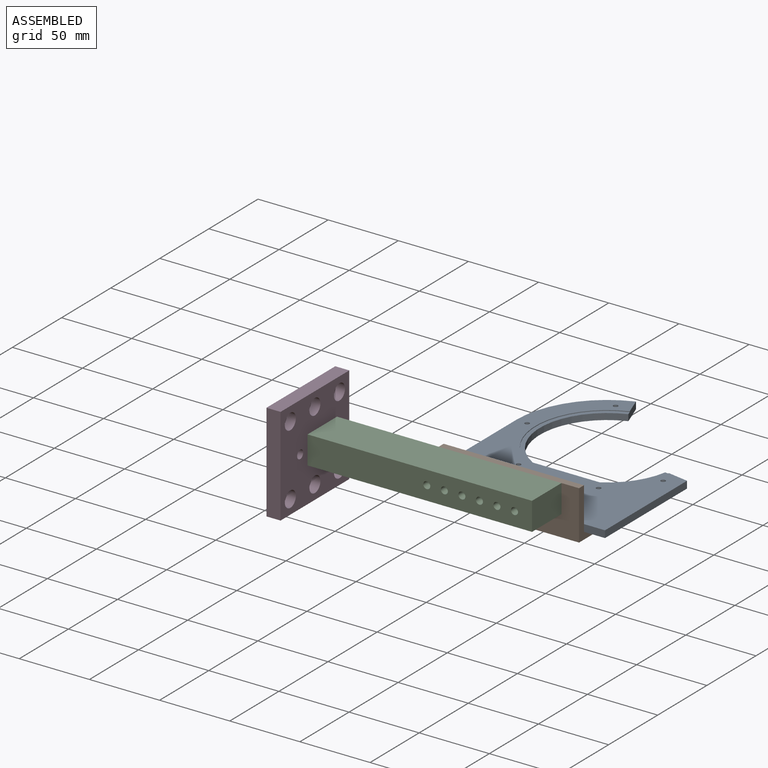
[diagram: assembled view]
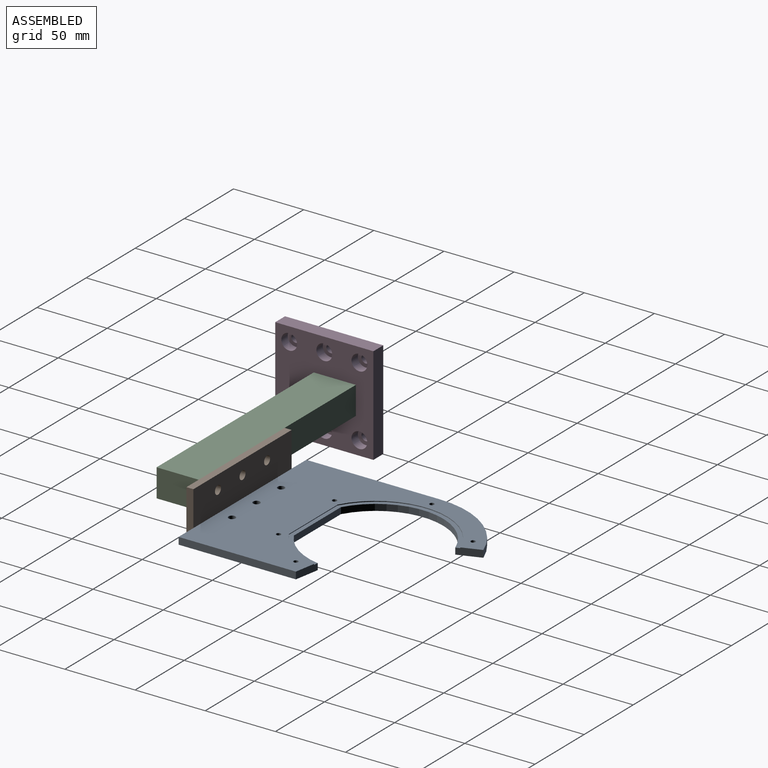
[diagram: assembled view, second angle]
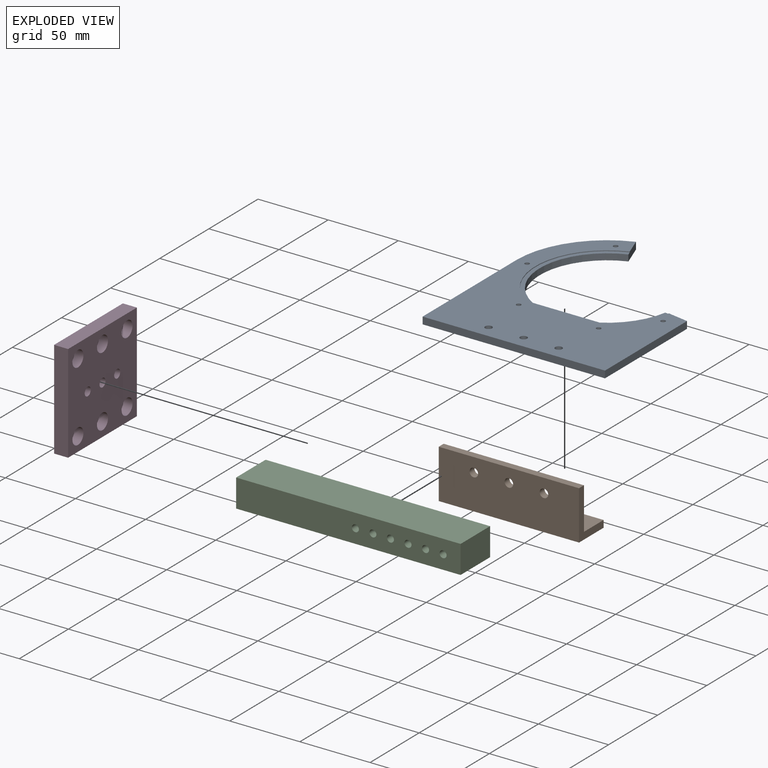
[diagram: exploded view]
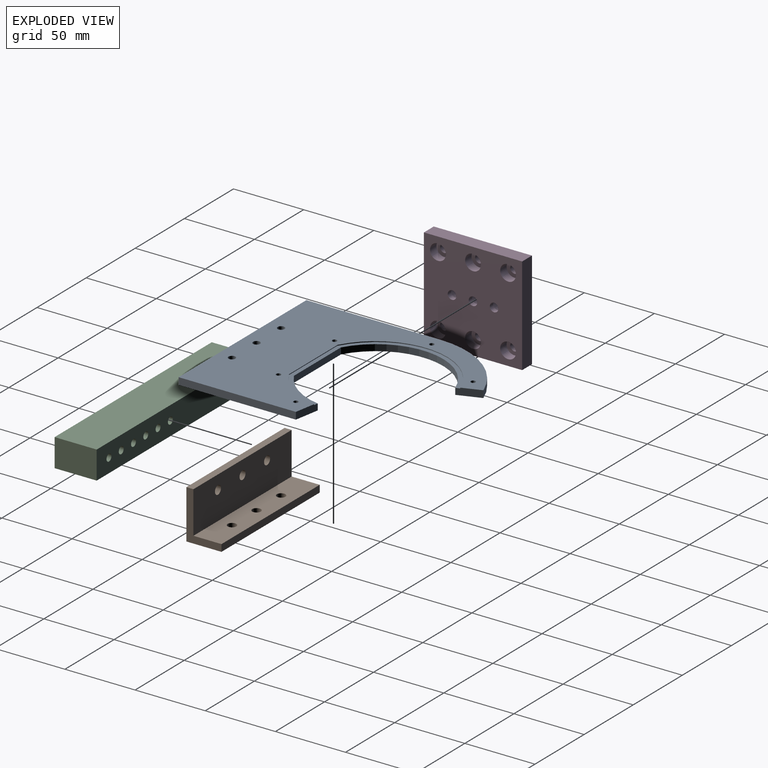
[diagram: exploded view, second angle]
ASSEMBLY  parts=4 mates=3
PART A: 23 faces, bbox 130x156.1x5 mm
  f0: plane 156.08x130mm, normal (0,0,-1), area 9226.5mm2, adj f3,f4,f7,f8,f9,f10,f12,f13
  f1: cylinder r=48mm len=33.27mm, axis (0,0,1), area 188.8mm2, adj f5,f6,f11,f13
  f2: cylinder r=48mm len=86.71mm, axis (0,0,1), area 490.4mm2, adj f5,f6,f11,f14
  f3: cylinder r=65mm len=61.08mm, axis (0,0,1), area 397.1mm2, adj f0,f5,f9,f14
  f4: plane 83.54x5mm, normal (1,0,0), area 417.7mm2, adj f0,f5,f10,f13
  f5: plane 156.08x130mm, normal (0,0,1), area 9841.9mm2, adj f1,f2,f3,f4,f9,f10,f11,f13
  f6: plane 101.23x92.52mm, normal (0,0,-1), area 615.4mm2, adj f1,f2,f7,f8,f11,f12,f13,f14
  f7: cylinder r=51mm len=35.74mm, axis (0,0,-1), area 22.7mm2, adj f0,f6,f12,f13
  f8: cylinder r=51mm len=92.52mm, axis (0,0,-1), area 58.3mm2, adj f0,f6,f12,f14
  f9: plane 95x5mm, normal (-1,0,0), area 475mm2, adj f0,f3,f5,f10
  f10: plane 130x5mm, normal (0,1,0), area 650mm2, adj f0,f4,f5,f9
  f11: plane 47.89x4.5mm, normal (0,-1,0), area 215.5mm2, adj f1,f2,f5,f6
  f12: plane 49.47x0.5mm, normal (0,-1,0), area 24.7mm2, adj f0,f6,f7,f8
  f13: plane 17.73x5mm, normal (0.17,-0.98,0), area 88.5mm2, adj f0,f1,f4,f5,f6,f7
  f14: plane 15.97x5.81mm, normal (0.94,-0.34,0), area 83.5mm2, adj f0,f2,f3,f5,f6,f8
  f15: cylinder r=2.46mm len=5mm, axis (0,0,-1), area 77.2mm2, adj f0,f5
  f16: cylinder r=2.46mm len=5mm, axis (0,0,-1), area 77.2mm2, adj f0,f5
  f17: cylinder r=2.46mm len=5mm, axis (0,0,-1), area 77.2mm2, adj f0,f5
  f18: cylinder r=1.62mm len=5mm, axis (0,0,-1), area 50.9mm2, adj f0,f5
  f19: cylinder r=1.62mm len=5mm, axis (0,0,-1), area 50.9mm2, adj f0,f5
  f20: cylinder r=1.62mm len=5mm, axis (0,0,-1), area 50.9mm2, adj f0,f5
  f21: cylinder r=1.62mm len=5mm, axis (0,0,-1), area 50.9mm2, adj f0,f5
  f22: cylinder r=1.62mm len=5mm, axis (0,0,-1), area 50.9mm2, adj f0,f5
PART B: 14 faces, bbox 100x25x35 mm
  f0: plane 35x25mm, normal (-1,0,0), area 275mm2, adj f1,f3,f4,f5,f6,f7
  f1: plane 100x25mm, normal (0,0,-1), area 2412.3mm2, adj f0,f2,f5,f7,f9,f10,f11
  f2: plane 35x25mm, normal (1,0,0), area 275mm2, adj f1,f3,f4,f5,f6,f7
  f3: plane 100x5mm, normal (0,0,1), area 500mm2, adj f0,f2,f4,f5
  f4: plane 100x30mm, normal (0,-1,0), area 2912.3mm2, adj f0,f2,f3,f6,f8,f12,f13
  f5: plane 100x35mm, normal (0,1,0), area 3412.3mm2, adj f0,f1,f2,f3,f8,f12,f13
  f6: plane 100x20mm, normal (0,0,1), area 1912.3mm2, adj f0,f2,f4,f7,f9,f10,f11
  f7: plane 100x5mm, normal (0,-1,0), area 500mm2, adj f0,f1,f2,f6
  f8: cylinder r=3.05mm len=6.1mm, axis (0,-1,0), area 95.8mm2, adj f4,f5
  f9: cylinder r=3.05mm len=6.1mm, axis (0,0,-1), area 95.8mm2, adj f1,f6
  f10: cylinder r=3.05mm len=6.1mm, axis (0,0,-1), area 95.8mm2, adj f1,f6
  f11: cylinder r=3.05mm len=6.1mm, axis (0,0,-1), area 95.8mm2, adj f1,f6
  f12: cylinder r=3.05mm len=6.1mm, axis (0,1,0), area 95.8mm2, adj f4,f5
  f13: cylinder r=3.05mm len=6.1mm, axis (0,1,0), area 95.8mm2, adj f4,f5
PART C: 16 faces, bbox 160x20x30 mm
  f0: plane 30x20mm, normal (1,0,0), area 600mm2, adj f1,f3,f4,f5
  f1: plane 160x20mm, normal (0,0,1), area 3082.2mm2, adj f0,f2,f4,f5,f10,f11,f12,f13
  f2: plane 30x20mm, normal (-1,0,0), area 560.7mm2, adj f1,f3,f4,f5,f7,f9
  f3: plane 160x20mm, normal (0,0,-1), area 3082.2mm2, adj f0,f2,f4,f5,f10,f11,f12,f13
  f4: plane 160x30mm, normal (0,1,0), area 4800mm2, adj f0,f1,f2,f3
  f5: plane 160x30mm, normal (0,-1,0), area 4800mm2, adj f0,f1,f2,f3
  f6: cone r=0mm half-angle=59deg, axis (-1,0,0), area 22.9mm2, adj f7
  f7: cylinder r=2.5mm len=18mm, axis (-1,0,0), area 282.7mm2, adj f2,f6
  f8: cone r=0mm half-angle=59deg, axis (-1,0,0), area 22.9mm2, adj f9
  f9: cylinder r=2.5mm len=18mm, axis (-1,0,0), area 282.7mm2, adj f2,f8
  f10: cylinder r=2.5mm len=30mm, axis (0,0,1), area 471.2mm2, adj f1,f3
  f11: cylinder r=2.5mm len=30mm, axis (0,0,1), area 471.2mm2, adj f1,f3
  f12: cylinder r=2.5mm len=30mm, axis (0,0,1), area 471.2mm2, adj f1,f3
  f13: cylinder r=2.5mm len=30mm, axis (0,0,1), area 471.2mm2, adj f1,f3
  f14: cylinder r=2.5mm len=30mm, axis (0,0,1), area 471.2mm2, adj f1,f3
  f15: cylinder r=2.5mm len=30mm, axis (0,0,1), area 471.2mm2, adj f1,f3
PART D: 33 faces, bbox 70x10x70 mm
  f0: plane 70x10mm, normal (1,0,0), area 700mm2, adj f1,f3,f4,f5
  f1: plane 70x10mm, normal (0,0,1), area 700mm2, adj f0,f2,f4,f5
  f2: plane 70x10mm, normal (-1,0,0), area 700mm2, adj f1,f3,f4,f5
  f3: plane 70x10mm, normal (0,0,-1), area 700mm2, adj f0,f2,f4,f5
  f4: plane 70x70mm, normal (0,1,0), area 4426.4mm2, adj f0,f1,f2,f3,f6,f9,f12,f15
  f5: plane 70x70mm, normal (0,-1,0), area 4215.9mm2, adj f0,f1,f2,f3,f8,f11,f14,f17
  f6: cylinder r=3.05mm len=6.1mm, axis (0,-1,0), area 67.1mm2, adj f4,f7
  f7: plane 11.25x11.25mm, normal (0,-1,0), area 70.2mm2, adj f6,f8
  f8: cylinder r=5.62mm len=11.25mm, axis (0,-1,0), area 229.7mm2, adj f5,f7
  f9: cylinder r=3.05mm len=6.1mm, axis (0,-1,0), area 67.1mm2, adj f4,f10
  f10: plane 11.25x11.25mm, normal (0,-1,0), area 70.2mm2, adj f9,f11
  f11: cylinder r=5.62mm len=11.25mm, axis (0,-1,0), area 229.7mm2, adj f5,f10
  f12: cylinder r=3.05mm len=6.1mm, axis (0,-1,0), area 67.1mm2, adj f4,f13
  f13: plane 11.25x11.25mm, normal (0,-1,0), area 70.2mm2, adj f12,f14
  f14: cylinder r=5.62mm len=11.25mm, axis (0,-1,0), area 229.7mm2, adj f5,f13
  f15: cylinder r=3.05mm len=6.1mm, axis (0,-1,0), area 67.1mm2, adj f4,f16
  f16: plane 11.25x11.25mm, normal (0,-1,0), area 70.2mm2, adj f15,f17
  f17: cylinder r=5.62mm len=11.25mm, axis (0,-1,0), area 229.7mm2, adj f5,f16
  f18: cylinder r=3.05mm len=6.1mm, axis (0,-1,0), area 67.1mm2, adj f4,f19
  f19: plane 11.25x11.25mm, normal (0,-1,0), area 70.2mm2, adj f18,f20
  f20: cylinder r=5.62mm len=11.25mm, axis (0,-1,0), area 229.7mm2, adj f5,f19
  f21: cylinder r=3.05mm len=6.1mm, axis (0,-1,0), area 67.1mm2, adj f4,f22
  f22: plane 11.25x11.25mm, normal (0,-1,0), area 70.2mm2, adj f21,f23
  f23: cylinder r=5.62mm len=11.25mm, axis (0,-1,0), area 229.7mm2, adj f5,f22
  f24: cylinder r=3.05mm len=6.1mm, axis (0,1,0), area 67.1mm2, adj f5,f25
  f25: plane 11.25x11.25mm, normal (0,1,0), area 70.2mm2, adj f24,f26
  f26: cylinder r=5.62mm len=11.25mm, axis (0,1,0), area 229.7mm2, adj f4,f25
  f27: cylinder r=3.05mm len=6.1mm, axis (0,1,0), area 67.1mm2, adj f5,f28
  f28: plane 11.25x11.25mm, normal (0,1,0), area 70.2mm2, adj f27,f29
  f29: cylinder r=5.62mm len=11.25mm, axis (0,1,0), area 229.7mm2, adj f4,f28
  f30: cylinder r=3.05mm len=6.1mm, axis (0,1,0), area 67.1mm2, adj f5,f31
  f31: plane 11.25x11.25mm, normal (0,1,0), area 70.2mm2, adj f30,f32
  f32: cylinder r=5.62mm len=11.25mm, axis (0,1,0), area 229.7mm2, adj f4,f31
PLACE A rot(axis=(1,0,0),180deg) t=(174.38,1.82,-124.1)mm
PLACE B rot(axis=(0,0,1),180deg) t=(261.34,-67.58,-148.2)mm
PLACE C rot(axis=(-1,0,0),90deg) t=(158.72,-82.58,-94.1)mm
PLACE D rot(axis=(0.58,-0.58,0.58),120deg) t=(78.72,-90.08,-104.1)mm
MATE fastened A.f17 <-> B.f10  axis (0,0,-1) through (176.22,-52.58,-124.1)mm
MATE fastened B.f12 <-> C.f13  axis (0,-1,0) through (176.22,-67.58,-104.1)mm
MATE fastened C.f8 <-> D.f24  axis (-1,0,0) through (78.72,-75.08,-104.1)mm
